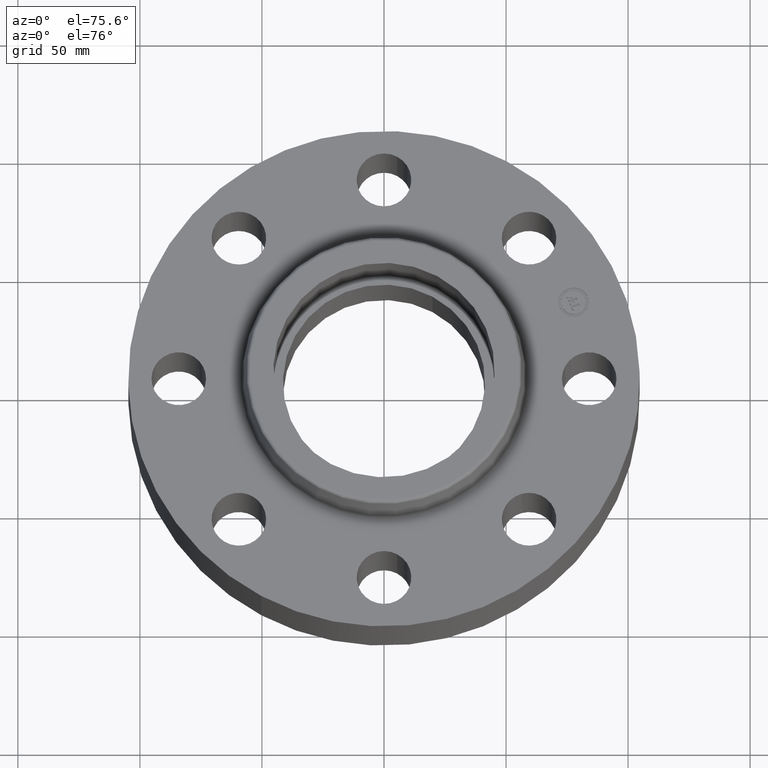
[diagram: clean part render]
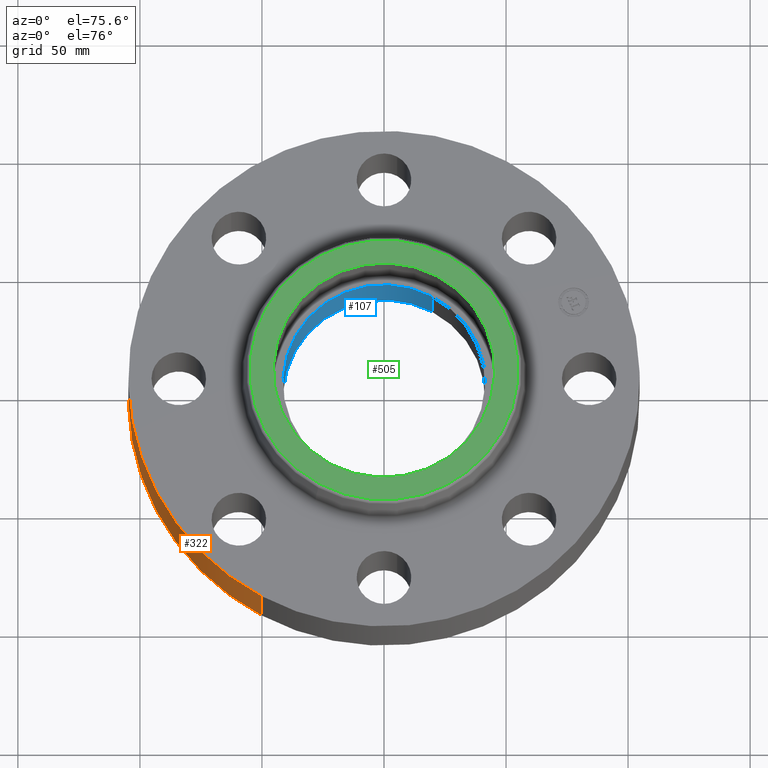
[diagram: same view with three faces highlighted in distinct colors, each labeled with its STEP entity id]
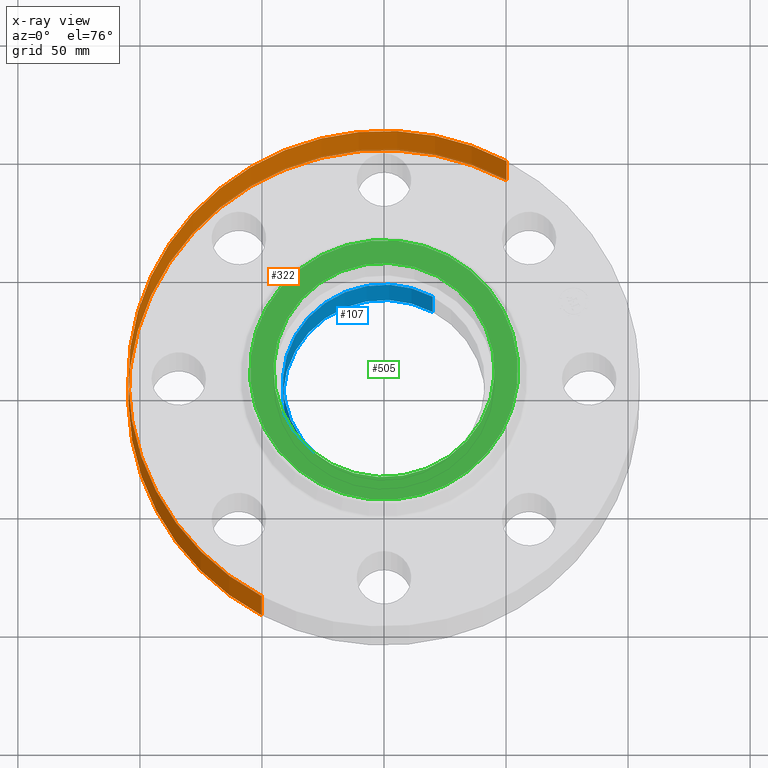
[diagram: x-ray of the same camera — body ghosted, the three highlighted faces saturated]
A machine part, auxiliary view with three faces highlighted in distinct colors.
The next image is the same camera in x-ray (body ghosted, the three faces saturated) — at least one of them is partly hidden behind the body in this view.
Their STEP definitions:

[orange] entity #322 — the highlighted cylindrical surface (partial cylindrical patch) has radius 104.775 mm, axis along (0, 0, -1).
#127=AXIS2_PLACEMENT_3D('Circle Axis2P3D',#125,#126,$) ;
#295=AXIS2_PLACEMENT_3D('Cylinder Axis2P3D',#292,#293,#294) ;
#306=AXIS2_PLACEMENT_3D('Circle Axis2P3D',#304,#305,$) ;
#125=CARTESIAN_POINT('Axis2P3D Location',(0.,0.,0.)) ;
#129=CARTESIAN_POINT('Vertex',(-1.97763034675,-3.62002806781,5.59482469102E-016)) ;
#131=CARTESIAN_POINT('Vertex',(1.97763034675,3.62002806781,5.59482469102E-016)) ;
#292=CARTESIAN_POINT('Axis2P3D Location',(0.,0.,0.905000000004)) ;
#297=CARTESIAN_POINT('Line Origine',(-1.97763034675,-3.62002806781,0.625000000003)) ;
#301=CARTESIAN_POINT('Vertex',(-1.97763034675,-3.62002806781,1.25000000001)) ;
#304=CARTESIAN_POINT('Axis2P3D Location',(0.,0.,1.25000000001)) ;
#308=CARTESIAN_POINT('Vertex',(1.97763034675,3.62002806781,1.25000000001)) ;
#311=CARTESIAN_POINT('Line Origine',(1.97763034675,3.62002806781,0.625000000003)) ;
#126=DIRECTION('Axis2P3D Direction',(0.,0.,-0.0393700787402)) ;
#293=DIRECTION('Axis2P3D Direction',(0.,0.,-0.0393700787402)) ;
#294=DIRECTION('Axis2P3D XDirection',(0.0188750212049,0.0345504945626,0.)) ;
#298=DIRECTION('Vector Direction',(0.,0.,-0.0393700787402)) ;
#305=DIRECTION('Axis2P3D Direction',(0.,0.,-0.0393700787402)) ;
#312=DIRECTION('Vector Direction',(0.,0.,-0.0393700787402)) ;
#299=VECTOR('Line Direction',#298,0.0393700787402) ;
#313=VECTOR('Line Direction',#312,0.0393700787402) ;
#317=ORIENTED_EDGE('',*,*,#133,.F.) ;
#318=ORIENTED_EDGE('',*,*,#303,.T.) ;
#319=ORIENTED_EDGE('',*,*,#310,.T.) ;
#320=ORIENTED_EDGE('',*,*,#315,.F.) ;
#322=ADVANCED_FACE('PartBody',(#321),#296,.T.) ;
#128=CIRCLE('generated circle',#127,4.12500000002) ;
#307=CIRCLE('generated circle',#306,4.12500000002) ;
#296=CYLINDRICAL_SURFACE('generated cylinder',#295,4.12500000002) ;
#133=EDGE_CURVE('',#130,#132,#128,.T.) ;
#303=EDGE_CURVE('',#130,#302,#300,.F.) ;
#310=EDGE_CURVE('',#302,#309,#307,.T.) ;
#315=EDGE_CURVE('',#132,#309,#314,.F.) ;
#316=EDGE_LOOP('',(#317,#318,#319,#320)) ;
#321=FACE_OUTER_BOUND('',#316,.T.) ;
#300=LINE('Line',#297,#299) ;
#314=LINE('Line',#311,#313) ;
#130=VERTEX_POINT('',#129) ;
#132=VERTEX_POINT('',#131) ;
#302=VERTEX_POINT('',#301) ;
#309=VERTEX_POINT('',#308) ;

[blue] entity #107 — the highlighted cylindrical surface (partial cylindrical patch) has radius 41.402 mm, axis along (0, 0, -1).
#69=AXIS2_PLACEMENT_3D('Circle Axis2P3D',#67,#68,$) ;
#80=AXIS2_PLACEMENT_3D('Cylinder Axis2P3D',#77,#78,#79) ;
#91=AXIS2_PLACEMENT_3D('Circle Axis2P3D',#89,#90,$) ;
#62=CARTESIAN_POINT('Vertex',(0.781463627928,1.43045957589,1.)) ;
#64=CARTESIAN_POINT('Vertex',(-0.781463627928,-1.43045957589,1.)) ;
#67=CARTESIAN_POINT('Axis2P3D Location',(2.79741234551E-016,0.,1.)) ;
#77=CARTESIAN_POINT('Axis2P3D Location',(0.,0.,0.905000000004)) ;
#82=CARTESIAN_POINT('Line Origine',(-0.781463627928,-1.43045957589,0.500000000002)) ;
#86=CARTESIAN_POINT('Vertex',(-0.781463627928,-1.43045957589,-5.59482469102E-015)) ;
#89=CARTESIAN_POINT('Axis2P3D Location',(0.,0.,-5.59482469102E-015)) ;
#93=CARTESIAN_POINT('Vertex',(0.781463627928,1.43045957589,-5.59482469102E-015)) ;
#96=CARTESIAN_POINT('Line Origine',(0.781463627928,1.43045957589,0.500000000002)) ;
#68=DIRECTION('Axis2P3D Direction',(0.,0.,-0.0393700787402)) ;
#78=DIRECTION('Axis2P3D Direction',(0.,0.,-0.0393700787402)) ;
#79=DIRECTION('Axis2P3D XDirection',(0.0188750212049,0.0345504945626,0.)) ;
#83=DIRECTION('Vector Direction',(0.,0.,-0.0393700787402)) ;
#90=DIRECTION('Axis2P3D Direction',(0.,0.,-0.0393700787402)) ;
#97=DIRECTION('Vector Direction',(0.,0.,-0.0393700787402)) ;
#84=VECTOR('Line Direction',#83,0.0393700787402) ;
#98=VECTOR('Line Direction',#97,0.0393700787402) ;
#102=ORIENTED_EDGE('',*,*,#88,.T.) ;
#103=ORIENTED_EDGE('',*,*,#95,.T.) ;
#104=ORIENTED_EDGE('',*,*,#100,.F.) ;
#105=ORIENTED_EDGE('',*,*,#71,.F.) ;
#107=ADVANCED_FACE('PartBody',(#106),#81,.F.) ;
#70=CIRCLE('generated circle',#69,1.63000000001) ;
#92=CIRCLE('generated circle',#91,1.63000000001) ;
#81=CYLINDRICAL_SURFACE('generated cylinder',#80,1.63000000001) ;
#71=EDGE_CURVE('',#65,#63,#70,.T.) ;
#88=EDGE_CURVE('',#65,#87,#85,.T.) ;
#95=EDGE_CURVE('',#87,#94,#92,.T.) ;
#100=EDGE_CURVE('',#63,#94,#99,.T.) ;
#101=EDGE_LOOP('',(#102,#103,#104,#105)) ;
#106=FACE_OUTER_BOUND('',#101,.T.) ;
#85=LINE('Line',#82,#84) ;
#99=LINE('Line',#96,#98) ;
#63=VERTEX_POINT('',#62) ;
#65=VERTEX_POINT('',#64) ;
#87=VERTEX_POINT('',#86) ;
#94=VERTEX_POINT('',#93) ;

[green] entity #505 — the highlighted planar face has unit normal (0, 0, -1).
#449=AXIS2_PLACEMENT_3D('Circle Axis2P3D',#447,#448,$) ;
#468=AXIS2_PLACEMENT_3D('Circle Axis2P3D',#466,#467,$) ;
#481=AXIS2_PLACEMENT_3D('Plane Axis2P3D',#478,#479,#480) ;
#489=AXIS2_PLACEMENT_3D('Circle Axis2P3D',#487,#488,$) ;
#498=AXIS2_PLACEMENT_3D('Circle Axis2P3D',#496,#497,$) ;
#444=CARTESIAN_POINT('Vertex',(1.03599587831,1.896377735,1.81000000001)) ;
#447=CARTESIAN_POINT('Axis2P3D Location',(0.,0.,1.81000000001)) ;
#451=CARTESIAN_POINT('Vertex',(-1.03599587831,-1.896377735,1.81000000001)) ;
#466=CARTESIAN_POINT('Axis2P3D Location',(0.,0.,1.81000000001)) ;
#478=CARTESIAN_POINT('Axis2P3D Location',(0.,2.16091091294,1.81000000001)) ;
#487=CARTESIAN_POINT('Axis2P3D Location',(2.09805925913E-016,-5.59482469102E-016,1.81000000001)) ;
#491=CARTESIAN_POINT('Vertex',(-1.56648487298,0.855774586412,1.81000000001)) ;
#493=CARTESIAN_POINT('Vertex',(1.56648487298,-0.855774586412,1.81000000001)) ;
#496=CARTESIAN_POINT('Axis2P3D Location',(1.39870617276E-016,0.,1.81000000001)) ;
#448=DIRECTION('Axis2P3D Direction',(0.,0.,-0.0393700787402)) ;
#467=DIRECTION('Axis2P3D Direction',(0.,0.,-0.0393700787402)) ;
#479=DIRECTION('Axis2P3D Direction',(0.,0.,-0.0393700787402)) ;
#480=DIRECTION('Axis2P3D XDirection',(0.0393700787402,0.,0.)) ;
#488=DIRECTION('Axis2P3D Direction',(0.,0.,-0.0393700787402)) ;
#497=DIRECTION('Axis2P3D Direction',(0.,0.,-0.0393700787402)) ;
#484=ORIENTED_EDGE('',*,*,#453,.F.) ;
#485=ORIENTED_EDGE('',*,*,#470,.F.) ;
#502=ORIENTED_EDGE('',*,*,#495,.T.) ;
#503=ORIENTED_EDGE('',*,*,#500,.T.) ;
#504=FACE_BOUND('',#501,.T.) ;
#505=ADVANCED_FACE('PartBody',(#486,#504),#482,.F.) ;
#450=CIRCLE('generated circle',#449,2.16091091294) ;
#469=CIRCLE('generated circle',#468,2.16091091294) ;
#490=CIRCLE('generated circle',#489,1.78500000001) ;
#499=CIRCLE('generated circle',#498,1.78500000001) ;
#453=EDGE_CURVE('',#445,#452,#450,.T.) ;
#470=EDGE_CURVE('',#452,#445,#469,.T.) ;
#495=EDGE_CURVE('',#492,#494,#490,.T.) ;
#500=EDGE_CURVE('',#494,#492,#499,.T.) ;
#483=EDGE_LOOP('',(#484,#485)) ;
#501=EDGE_LOOP('',(#502,#503)) ;
#486=FACE_OUTER_BOUND('',#483,.T.) ;
#482=PLANE('',#481) ;
#445=VERTEX_POINT('',#444) ;
#452=VERTEX_POINT('',#451) ;
#492=VERTEX_POINT('',#491) ;
#494=VERTEX_POINT('',#493) ;